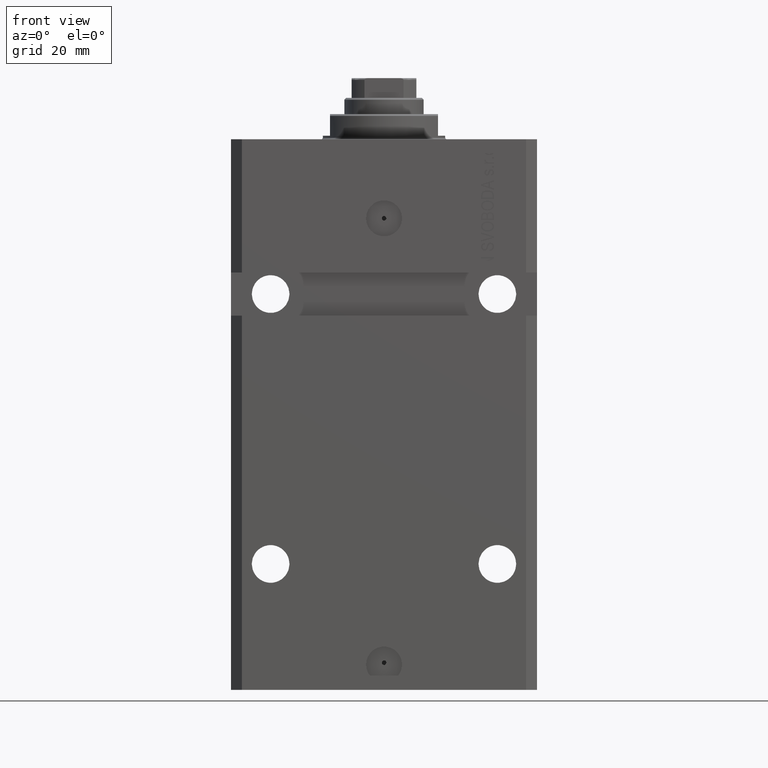
[diagram: clean part render]
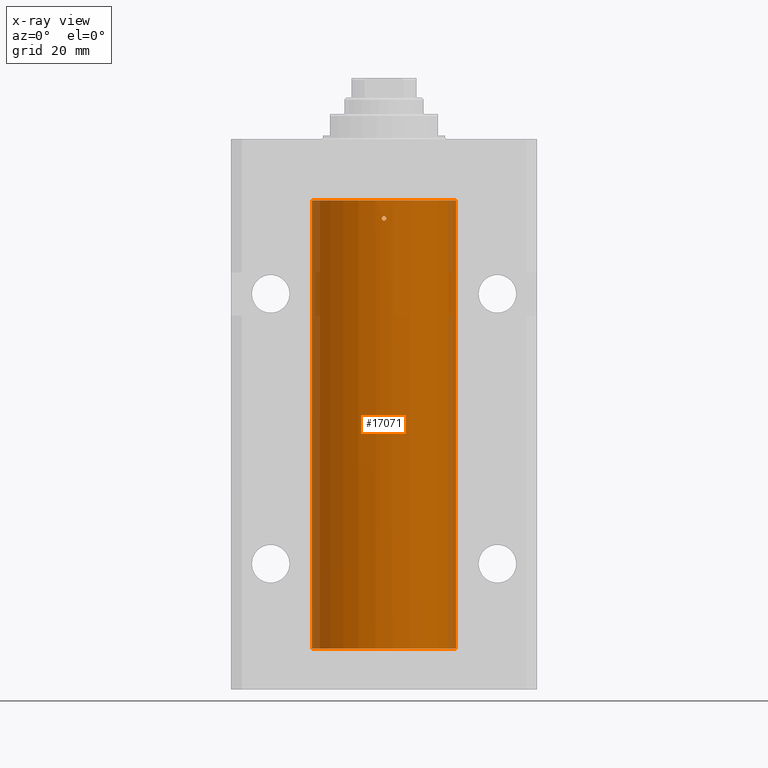
[diagram: x-ray — body ghosted, one internal face saturated and labeled with its STEP entity id]
A machine part, front view, then the same camera in x-ray: the body is ghosted and one INTERNAL B-rep face — a face not visible from any outside direction — is saturated and labeled: STEP entity #17071.
In plain terms, the highlighted cylindrical surface (partial cylindrical patch) has radius 20 mm, axis along (0, 0, 1).
Its self-contained STEP definition (entity closure, byte-faithful):
#154 = B_SPLINE_CURVE_WITH_KNOTS ( 'NONE', 3,
 ( #12038, #22053, #36897, #3541, #23983, #46129 ),
 .UNSPECIFIED., .F., .F.,
 ( 4, 2, 4 ),
 ( 0.002931526102908778124, 0.003419696219975600082, 0.003907866337042422041 ),
 .UNSPECIFIED. ) ;
#209 = CARTESIAN_POINT ( 'NONE',  ( 19.99023198964933812, -0.6250000000000839329, -138.9999999999999432 ) ) ;
#683 = EDGE_CURVE ( 'NONE', #21357, #23312, #38319, .T. ) ;
#996 = ORIENTED_EDGE ( 'NONE', *, *, #33837, .T. ) ;
#1030 = CARTESIAN_POINT ( 'NONE',  ( 20.00000000000000000, 0.000000000000000000, -141.5999999999999943 ) ) ;
#1372 = VERTEX_POINT ( 'NONE', #209 ) ;
#1726 = CARTESIAN_POINT ( 'NONE',  ( 0.6087363597162602780, -19.99075850180857117, -21.83635608258754957 ) ) ;
#1761 = CARTESIAN_POINT ( 'NONE',  ( -0.5574110886242996665, -19.99256263711735215, -22.32630989244538711 ) ) ;
#2013 = CARTESIAN_POINT ( 'NONE',  ( 19.99023198964934167, -0.6250000000000767164, -139.1647941998272131 ) ) ;
#2245 = CARTESIAN_POINT ( 'NONE',  ( 0.6250000000000026645, -19.99023198964934522, -22.00000000000000000 ) ) ;
#3355 = CARTESIAN_POINT ( 'NONE',  ( 19.99023198964934167, -0.6250000000000761613, -24.00000000000000000 ) ) ;
#3541 = CARTESIAN_POINT ( 'NONE',  ( 19.99766246719553209, -0.3267907458473866544, -24.55716086079692317 ) ) ;
#3833 = CARTESIAN_POINT ( 'NONE',  ( 19.99023198964933812, -0.6250000000000839329, -138.9999999999999432 ) ) ;
#4117 = CARTESIAN_POINT ( 'NONE',  ( -0.6250000000033326675, -19.99023198964924219, -21.99999999999967315 ) ) ;
#4431 = LINE ( 'NONE', #41431, #38476 ) ;
#4912 = DIRECTION ( 'NONE',  ( -0.000000000000000000, -0.000000000000000000, 1.000000000000000000 ) ) ;
#5349 = VERTEX_POINT ( 'NONE', #12325 ) ;
#5817 = EDGE_CURVE ( 'NONE', #41701, #5349, #154, .T. ) ;
#5861 = CARTESIAN_POINT ( 'NONE',  ( -0.6249999999998574474, -19.99023198964934878, -21.83683113816865529 ) ) ;
#6089 = EDGE_CURVE ( 'NONE', #29618, #30910, #38041, .T. ) ;
#7282 = CARTESIAN_POINT ( 'NONE',  ( 0.000000000000000000, 0.000000000000000000, -141.5999999999999943 ) ) ;
#7779 = CARTESIAN_POINT ( 'NONE',  ( 19.99023198964934167, -0.6250000000000761613, -24.00000000000000000 ) ) ;
#7795 = VERTEX_POINT ( 'NONE', #22732 ) ;
#9266 = CARTESIAN_POINT ( 'NONE',  ( 0.3265143537867915002, -19.99766736494331809, -21.44267231150418240 ) ) ;
#9303 = CARTESIAN_POINT ( 'NONE',  ( 20.00000000000000000, -0.1650670266421448706, -139.6250000000000000 ) ) ;
#9360 = EDGE_CURVE ( 'NONE', #37648, #29618, #35419, .T. ) ;
#9534 = CARTESIAN_POINT ( 'NONE',  ( -0.3270944962368909081, -19.99765679051705902, -22.55695103748945129 ) ) ;
#9750 = CARTESIAN_POINT ( 'NONE',  ( -0.5585582113630487289, -19.99253968778482360, -21.67461956847272830 ) ) ;
#9791 = CARTESIAN_POINT ( 'NONE',  ( 19.99256494106949944, -0.5573539455062642700, -139.3264613235960496 ) ) ;
#11506 = CARTESIAN_POINT ( 'NONE',  ( 20.00000000000000000, 0.000000000000000000, -141.5999999999999943 ) ) ;
#11572 = ORIENTED_EDGE ( 'NONE', *, *, #38894, .T. ) ;
#12038 = CARTESIAN_POINT ( 'NONE',  ( 19.99023198964934167, -0.6250000000000761613, -24.00000000000000000 ) ) ;
#12067 = AXIS2_PLACEMENT_3D ( 'NONE', #25864, #22238, #37083 ) ;
#12325 = CARTESIAN_POINT ( 'NONE',  ( 20.00000000000000000, -1.112928376255647276E-15, -24.62500000000000000 ) ) ;
#12531 = ORIENTED_EDGE ( 'NONE', *, *, #42123, .T. ) ;
#12953 = CARTESIAN_POINT ( 'NONE',  ( -0.1653813832397391104, -19.99999568866902067, -22.62486203736067125 ) ) ;
#13154 = CARTESIAN_POINT ( 'NONE',  ( 0.5459793025363884889, -19.99257092108152634, -21.68496684531850249 ) ) ;
#13267 = EDGE_CURVE ( 'NONE', #26630, #41701, #44079, .T. ) ;
#14036 = EDGE_LOOP ( 'NONE', ( #30443, #15433, #31840, #40137, #29323, #18237, #27453, #29651, #12531, #35079 ) ) ;
#15082 = CARTESIAN_POINT ( 'NONE',  ( 19.99257096259850286, -0.5571491910957594440, -23.67319862246101181 ) ) ;
#15433 = ORIENTED_EDGE ( 'NONE', *, *, #35777, .T. ) ;
#15562 = CARTESIAN_POINT ( 'NONE',  ( 20.00000000000010303, 3.555666336392955914E-13, -23.37499999999667111 ) ) ;
#15687 = CARTESIAN_POINT ( 'NONE',  ( 20.00000000000010303, 3.555666336392955914E-13, -23.37499999999667111 ) ) ;
#16820 = CARTESIAN_POINT ( 'NONE',  ( 0.1632920704146597346, -19.99999818881353164, -21.37505795797077823 ) ) ;
#17071 = ADVANCED_FACE ( 'NONE', ( #33587, #29932 ), #25796, .F. ) ;
#17282 = CARTESIAN_POINT ( 'NONE',  ( -0.3251162203622516289, -19.99769811469285230, -21.44128795971509405 ) ) ;
#18237 = ORIENTED_EDGE ( 'NONE', *, *, #5817, .T. ) ;
#18285 = VECTOR ( 'NONE', #37340, 1000.000000000000000 ) ;
#18734 = CARTESIAN_POINT ( 'NONE',  ( 20.00000000000000355, -0.1632180151482442720, -23.37499999999983658 ) ) ;
#19398 = B_SPLINE_CURVE_WITH_KNOTS ( 'NONE', 3,
 ( #24400, #2013, #9791, #38773, #9303, #35118 ),
 .UNSPECIFIED., .F., .F.,
 ( 4, 2, 4 ),
 ( 0.002931526102908884376, 0.003419696219975714574, 0.003907866337042544339 ),
 .UNSPECIFIED. ) ;
#19650 = CARTESIAN_POINT ( 'NONE',  ( 0.000000000000000000, 0.000000000000000000, -17.00000000000000000 ) ) ;
#21276 = CARTESIAN_POINT ( 'NONE',  ( 20.00000000000000000, 0.000000000000000000, -17.00000000000000000 ) ) ;
#21357 = VERTEX_POINT ( 'NONE', #23282 ) ;
#21441 = DIRECTION ( 'NONE',  ( 1.000000000000000000, 0.000000000000000000, 0.000000000000000000 ) ) ;
#21496 = B_SPLINE_CURVE_WITH_KNOTS ( 'NONE', 3,
 ( #25754, #22114, #33305, #44504, #37205, #3833 ),
 .UNSPECIFIED., .F., .F.,
 ( 4, 2, 4 ),
 ( 0.001954154509844120095, 0.002442840306376502235, 0.002931526102908884376 ),
 .UNSPECIFIED. ) ;
#22053 = CARTESIAN_POINT ( 'NONE',  ( 19.99023198964934167, -0.6250000000000763833, -24.16479419982728061 ) ) ;
#22114 = CARTESIAN_POINT ( 'NONE',  ( 20.00000000000000000, -0.1632180151482494623, -138.3749999999997442 ) ) ;
#22238 = DIRECTION ( 'NONE',  ( 0.000000000000000000, 0.000000000000000000, 1.000000000000000000 ) ) ;
#22570 = AXIS2_PLACEMENT_3D ( 'NONE', #7282, #36514, #21441 ) ;
#22732 = CARTESIAN_POINT ( 'NONE',  ( 0.6250000000000026645, -19.99023198964934522, -22.00000000000000000 ) ) ;
#23282 = CARTESIAN_POINT ( 'NONE',  ( -20.00000000000000000, 2.449293598294706513E-15, -17.00000000000000000 ) ) ;
#23312 = VERTEX_POINT ( 'NONE', #21276 ) ;
#23983 = CARTESIAN_POINT ( 'NONE',  ( 19.99999999999999645, -0.1650670266421418453, -24.62500000000001421 ) ) ;
#24121 = EDGE_CURVE ( 'NONE', #26630, #23312, #28935, .T. ) ;
#24166 = CARTESIAN_POINT ( 'NONE',  ( 0.6250000000000026645, -19.99023198964934522, -22.16515421183406076 ) ) ;
#24208 = B_SPLINE_CURVE_WITH_KNOTS ( 'NONE', 3,
 ( #31460, #43146, #1761, #9534, #12953, #27805, #42665, #46563, #24166, #2245 ),
 .UNSPECIFIED., .F., .F.,
 ( 4, 2, 2, 2, 4 ),
 ( 0.001954154506134463815, 0.002442582461700956980, 0.002931010417267450145, 0.003419438372833943311, 0.003907866328400436476 ),
 .UNSPECIFIED. ) ;
#24400 = CARTESIAN_POINT ( 'NONE',  ( 19.99023198964933812, -0.6250000000000839329, -138.9999999999999432 ) ) ;
#24612 = CARTESIAN_POINT ( 'NONE',  ( -0.1628481006860607039, -20.00000180872260813, -21.37494212087287337 ) ) ;
#25754 = CARTESIAN_POINT ( 'NONE',  ( 20.00000000000010303, 3.555666311577537537E-13, -138.3749999999966178 ) ) ;
#25796 = CYLINDRICAL_SURFACE ( 'NONE', #22570, 20.00000000000000000 ) ;
#25864 = CARTESIAN_POINT ( 'NONE',  ( 0.000000000000000000, 0.000000000000000000, -141.5999999999999943 ) ) ;
#25946 = VECTOR ( 'NONE', #4912, 1000.000000000000000 ) ;
#26630 = VERTEX_POINT ( 'NONE', #15687 ) ;
#27453 = ORIENTED_EDGE ( 'NONE', *, *, #42838, .F. ) ;
#27805 = CARTESIAN_POINT ( 'NONE',  ( 0.1643369734423495987, -20.00000429769607280, -22.62513752632251851 ) ) ;
#28701 = DIRECTION ( 'NONE',  ( -0.000000000000000000, -0.000000000000000000, 1.000000000000000000 ) ) ;
#28935 = LINE ( 'NONE', #31650, #42868 ) ;
#29323 = ORIENTED_EDGE ( 'NONE', *, *, #13267, .T. ) ;
#29618 = VERTEX_POINT ( 'NONE', #11506 ) ;
#29651 = ORIENTED_EDGE ( 'NONE', *, *, #30801, .T. ) ;
#29686 = CARTESIAN_POINT ( 'NONE',  ( 19.99023198964933457, -0.6250000000000760503, -23.83503171949486443 ) ) ;
#29932 = FACE_OUTER_BOUND ( 'NONE', #14036, .T. ) ;
#30242 = DIRECTION ( 'NONE',  ( -0.000000000000000000, -0.000000000000000000, 1.000000000000000000 ) ) ;
#30411 = CARTESIAN_POINT ( 'NONE',  ( 19.99766790699044350, -0.3264769477312324808, -23.44266063830005464 ) ) ;
#30443 = ORIENTED_EDGE ( 'NONE', *, *, #9360, .F. ) ;
#30791 = CARTESIAN_POINT ( 'NONE',  ( -20.00000000000000000, 2.449293598294706513E-15, -141.5999999999999943 ) ) ;
#30801 = EDGE_CURVE ( 'NONE', #44344, #1372, #21496, .T. ) ;
#30850 = CARTESIAN_POINT ( 'NONE',  ( 20.00000000000000000, -2.179639976041390721E-15, -139.6249999999999716 ) ) ;
#30910 = VERTEX_POINT ( 'NONE', #30850 ) ;
#31098 = EDGE_LOOP ( 'NONE', ( #996, #11572 ) ) ;
#31460 = CARTESIAN_POINT ( 'NONE',  ( -0.6250000000033326675, -19.99023198964924219, -21.99999999999967315 ) ) ;
#31650 = CARTESIAN_POINT ( 'NONE',  ( 20.00000000000000000, 0.000000000000000000, -141.5999999999999943 ) ) ;
#31840 = ORIENTED_EDGE ( 'NONE', *, *, #683, .T. ) ;
#33305 = CARTESIAN_POINT ( 'NONE',  ( 19.99766790699043995, -0.3264769477312507995, -138.4426606383000262 ) ) ;
#33587 = FACE_BOUND ( 'NONE', #31098, .T. ) ;
#33803 = DIRECTION ( 'NONE',  ( 0.000000000000000000, 0.000000000000000000, 1.000000000000000000 ) ) ;
#33837 = EDGE_CURVE ( 'NONE', #7795, #34842, #36802, .T. ) ;
#34842 = VERTEX_POINT ( 'NONE', #4117 ) ;
#35079 = ORIENTED_EDGE ( 'NONE', *, *, #6089, .F. ) ;
#35118 = CARTESIAN_POINT ( 'NONE',  ( 20.00000000000000000, -2.179639976041390721E-15, -139.6249999999999716 ) ) ;
#35419 = CIRCLE ( 'NONE', #12067, 20.00000000000000000 ) ;
#35777 = EDGE_CURVE ( 'NONE', #37648, #21357, #4431, .T. ) ;
#36514 = DIRECTION ( 'NONE',  ( -0.000000000000000000, -0.000000000000000000, 1.000000000000000000 ) ) ;
#36608 = CARTESIAN_POINT ( 'NONE',  ( 20.00000000000000000, 0.000000000000000000, -141.5999999999999943 ) ) ;
#36802 = B_SPLINE_CURVE_WITH_KNOTS ( 'NONE', 3,
 ( #42870, #42631, #1726, #13154, #39212, #9266, #16820, #24612, #17282, #9750, #5861, #39683 ),
 .UNSPECIFIED., .F., .F.,
 ( 4, 2, 2, 2, 2, 4 ),
 ( 0.000000000000000000, 0.0002442693132668051579, 0.0004885386265336103158, 0.0009770772530672282210, 0.001465615879600846126, 0.001954154506134463815 ),
 .UNSPECIFIED. ) ;
#36897 = CARTESIAN_POINT ( 'NONE',  ( 19.99256494106949944, -0.5573539455062669346, -24.32646132359606383 ) ) ;
#37083 = DIRECTION ( 'NONE',  ( 1.000000000000000000, 0.000000000000000000, 0.000000000000000000 ) ) ;
#37205 = CARTESIAN_POINT ( 'NONE',  ( 19.99023198964933812, -0.6250000000000911493, -138.8350317194948786 ) ) ;
#37340 = DIRECTION ( 'NONE',  ( -0.000000000000000000, -0.000000000000000000, 1.000000000000000000 ) ) ;
#37648 = VERTEX_POINT ( 'NONE', #30791 ) ;
#38041 = LINE ( 'NONE', #1030, #25946 ) ;
#38319 = CIRCLE ( 'NONE', #43774, 20.00000000000000000 ) ;
#38476 = VECTOR ( 'NONE', #30242, 1000.000000000000000 ) ;
#38773 = CARTESIAN_POINT ( 'NONE',  ( 19.99766246719553209, -0.3267907458473790494, -139.5571608607968699 ) ) ;
#38894 = EDGE_CURVE ( 'NONE', #34842, #7795, #24208, .T. ) ;
#39125 = DIRECTION ( 'NONE',  ( 1.000000000000000000, 0.000000000000000000, 0.000000000000000000 ) ) ;
#39212 = CARTESIAN_POINT ( 'NONE',  ( 0.4995363768272698679, -19.99384383563509360, -21.61563220462100432 ) ) ;
#39683 = CARTESIAN_POINT ( 'NONE',  ( -0.6250000000033326675, -19.99023198964924219, -21.99999999999967315 ) ) ;
#40137 = ORIENTED_EDGE ( 'NONE', *, *, #24121, .F. ) ;
#40992 = LINE ( 'NONE', #36608, #18285 ) ;
#41431 = CARTESIAN_POINT ( 'NONE',  ( -20.00000000000000000, 2.449293598294706513E-15, -141.5999999999999943 ) ) ;
#41598 = CARTESIAN_POINT ( 'NONE',  ( 20.00000000000010303, 3.555666311577537537E-13, -138.3749999999966178 ) ) ;
#41701 = VERTEX_POINT ( 'NONE', #3355 ) ;
#42123 = EDGE_CURVE ( 'NONE', #1372, #30910, #19398, .T. ) ;
#42631 = CARTESIAN_POINT ( 'NONE',  ( 0.6250000000000028866, -19.99023198964935233, -21.91740418326171280 ) ) ;
#42665 = CARTESIAN_POINT ( 'NONE',  ( 0.3261666526553446133, -19.99767369487616264, -22.55755299038902706 ) ) ;
#42838 = EDGE_CURVE ( 'NONE', #44344, #5349, #40992, .T. ) ;
#42868 = VECTOR ( 'NONE', #28701, 1000.000000000000000 ) ;
#42870 = CARTESIAN_POINT ( 'NONE',  ( 0.6250000000000026645, -19.99023198964934522, -22.00000000000000000 ) ) ;
#43146 = CARTESIAN_POINT ( 'NONE',  ( -0.6250000000001382228, -19.99023198964934167, -22.16313189841578080 ) ) ;
#43774 = AXIS2_PLACEMENT_3D ( 'NONE', #19650, #33803, #39125 ) ;
#44079 = B_SPLINE_CURVE_WITH_KNOTS ( 'NONE', 3,
 ( #15562, #18734, #30411, #15082, #29686, #7779 ),
 .UNSPECIFIED., .F., .F.,
 ( 4, 2, 4 ),
 ( 0.001954154509844058078, 0.002442840306376418101, 0.002931526102908778124 ),
 .UNSPECIFIED. ) ;
#44344 = VERTEX_POINT ( 'NONE', #41598 ) ;
#44504 = CARTESIAN_POINT ( 'NONE',  ( 19.99257096259849931, -0.5571491910957772076, -138.6731986224609727 ) ) ;
#46129 = CARTESIAN_POINT ( 'NONE',  ( 20.00000000000000000, -1.112928376255647276E-15, -24.62500000000000000 ) ) ;
#46563 = CARTESIAN_POINT ( 'NONE',  ( 0.5570899181683264256, -19.99257333899569744, -22.32695694742785619 ) ) ;